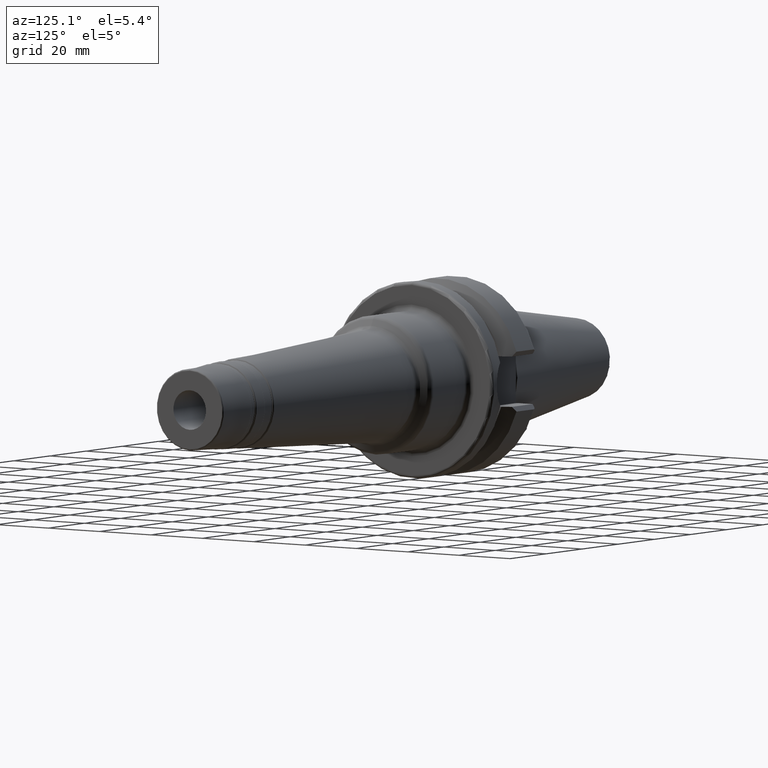
[diagram: clean part render]
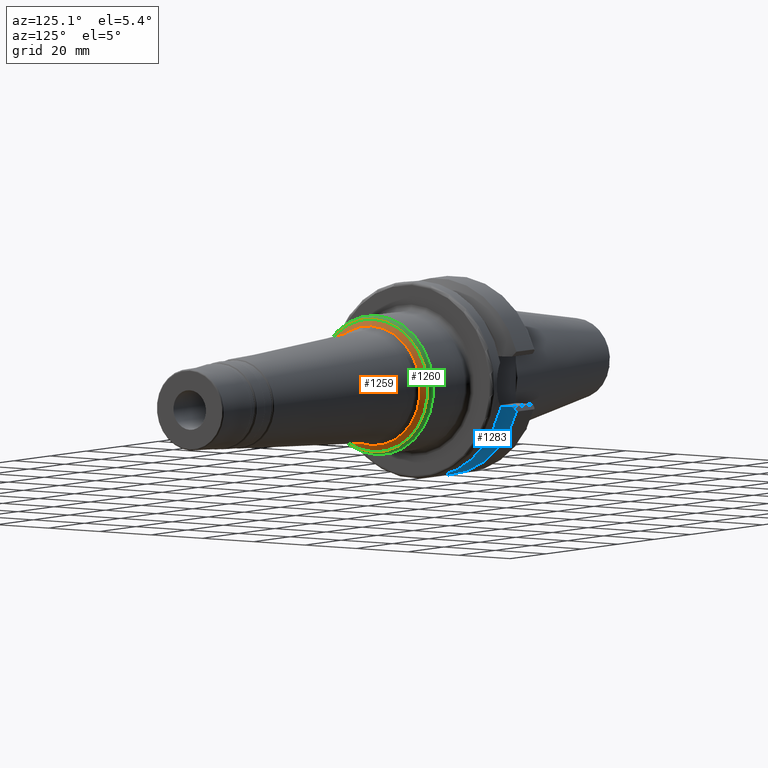
[diagram: same view with three faces highlighted in distinct colors, each labeled with its STEP entity id]
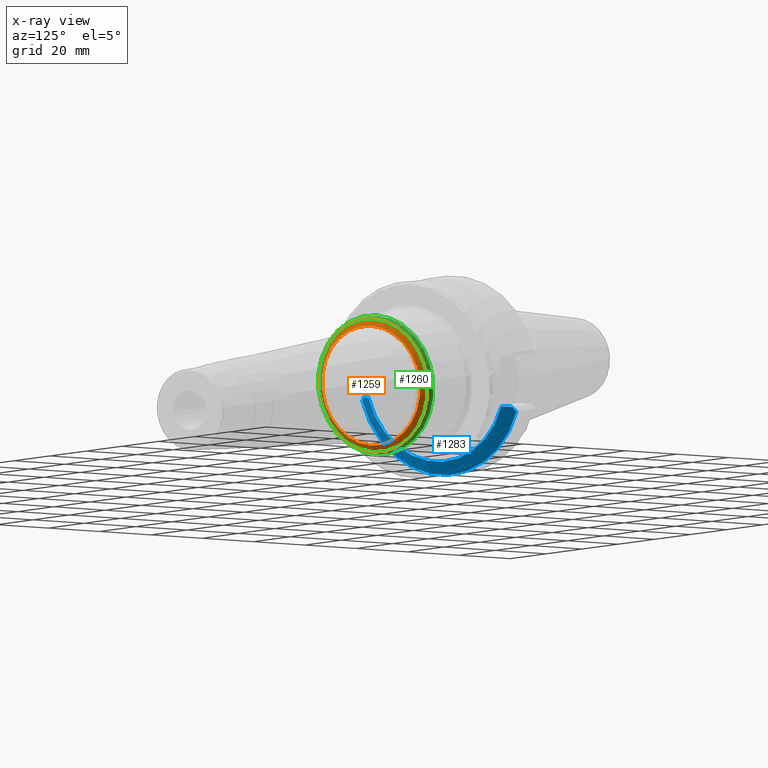
[diagram: x-ray of the same camera — body ghosted, the three highlighted faces saturated]
A machine part, auxiliary view with three faces highlighted in distinct colors.
The next image is the same camera in x-ray (body ghosted, the three faces saturated) — at least one of them is partly hidden behind the body in this view.
Their STEP definitions:

[orange] entity #1259 — the highlighted conical surface has half-angle 60 deg.
#105=LINE('',#2014,#174);
#174=VECTOR('',#1630,20.245388964152);
#243=CONICAL_SURFACE('',#1394,20.245388964152,1.0471975511966);
#275=FACE_OUTER_BOUND('',#357,.T.);
#357=EDGE_LOOP('',(#909,#910,#911,#912));
#452=CIRCLE('',#1392,19.181204786337);
#454=CIRCLE('',#1395,21.25);
#536=VERTEX_POINT('',#2009);
#537=VERTEX_POINT('',#2013);
#674=EDGE_CURVE('',#536,#536,#452,.T.);
#676=EDGE_CURVE('',#536,#537,#105,.T.);
#677=EDGE_CURVE('',#537,#537,#454,.T.);
#909=ORIENTED_EDGE('',*,*,#674,.F.);
#910=ORIENTED_EDGE('',*,*,#676,.T.);
#911=ORIENTED_EDGE('',*,*,#677,.F.);
#912=ORIENTED_EDGE('',*,*,#676,.F.);
#1259=ADVANCED_FACE('',(#275),#243,.T.);
#1392=AXIS2_PLACEMENT_3D('',#2010,#1624,#1625);
#1394=AXIS2_PLACEMENT_3D('',#2012,#1628,#1629);
#1395=AXIS2_PLACEMENT_3D('',#2015,#1631,#1632);
#1624=DIRECTION('center_axis',(1.,0.,0.));
#1625=DIRECTION('ref_axis',(0.,0.,1.));
#1628=DIRECTION('center_axis',(-1.,0.,0.));
#1629=DIRECTION('ref_axis',(0.,0.,-1.));
#1630=DIRECTION('',(-0.499999999999999,-1.06057523872491E-16,0.866025403784439));
#1631=DIRECTION('center_axis',(-1.,0.,0.));
#1632=DIRECTION('ref_axis',(0.,2.32017913300298E-32,1.));
#2009=CARTESIAN_POINT('',(49.4570443003616,-2.34902010453775E-15,19.181204786337));
#2010=CARTESIAN_POINT('Origin',(49.4570443003616,-2.34902010453775E-15,
0.));
#2012=CARTESIAN_POINT('Origin',(48.8426372788327,0.,0.));
#2013=CARTESIAN_POINT('',(48.262624826855,-2.60237444818813E-15,21.25));
#2014=CARTESIAN_POINT('',(48.8426372788327,-2.47934507924419E-15,20.245388964152));
#2015=CARTESIAN_POINT('Origin',(48.262624826855,-2.60237444818813E-15,0.));

[blue] entity #1283 — the highlighted conical surface has half-angle 60.125 deg.
#15=(
BOUNDED_CURVE()
B_SPLINE_CURVE(2,(#2207,#2208,#2209),.UNSPECIFIED.,.F.,.F.)
B_SPLINE_CURVE_WITH_KNOTS((3,3),(0.,0.199960249921199),.UNSPECIFIED.)
CURVE()
GEOMETRIC_REPRESENTATION_ITEM()
RATIONAL_B_SPLINE_CURVE((1.,1.00151196517195,1.00204724221686))
REPRESENTATION_ITEM('')
);
#18=(
BOUNDED_CURVE()
B_SPLINE_CURVE(2,(#2356,#2357,#2358),.UNSPECIFIED.,.F.,.F.)
B_SPLINE_CURVE_WITH_KNOTS((3,3),(0.419137956116462,0.619098206037661),
 .UNSPECIFIED.)
CURVE()
GEOMETRIC_REPRESENTATION_ITEM()
RATIONAL_B_SPLINE_CURVE((1.00204724221686,1.00151196517195,1.))
REPRESENTATION_ITEM('')
);
#19=(
BOUNDED_CURVE()
B_SPLINE_CURVE(2,(#2362,#2363,#2364),.UNSPECIFIED.,.F.,.F.)
B_SPLINE_CURVE_WITH_KNOTS((3,3),(0.173905198239554,0.523582790832813),
 .UNSPECIFIED.)
CURVE()
GEOMETRIC_REPRESENTATION_ITEM()
RATIONAL_B_SPLINE_CURVE((1.00136360040299,1.00205272099915,1.))
REPRESENTATION_ITEM('')
);
#20=(
BOUNDED_CURVE()
B_SPLINE_CURVE(2,(#2367,#2368,#2369),.UNSPECIFIED.,.F.,.F.)
B_SPLINE_CURVE_WITH_KNOTS((3,3),(0.,0.349677592593259),.UNSPECIFIED.)
CURVE()
GEOMETRIC_REPRESENTATION_ITEM()
RATIONAL_B_SPLINE_CURVE((1.,1.00205272099915,1.00136360040299))
REPRESENTATION_ITEM('')
);
#245=CONICAL_SURFACE('',#1443,29.2970358274569,1.04937921276159);
#299=FACE_OUTER_BOUND('',#384,.T.);
#384=EDGE_LOOP('',(#1018,#1019,#1020,#1021,#1022,#1023));
#474=CIRCLE('',#1428,31.5000000000001);
#481=CIRCLE('',#1444,27.0940716549138);
#563=VERTEX_POINT('',#2204);
#564=VERTEX_POINT('',#2206);
#567=VERTEX_POINT('',#2216);
#585=VERTEX_POINT('',#2355);
#586=VERTEX_POINT('',#2361);
#587=VERTEX_POINT('',#2365);
#712=EDGE_CURVE('',#563,#564,#15,.T.);
#717=EDGE_CURVE('',#563,#567,#474,.T.);
#742=EDGE_CURVE('',#585,#567,#18,.T.);
#744=EDGE_CURVE('',#585,#586,#19,.T.);
#745=EDGE_CURVE('',#587,#586,#481,.T.);
#746=EDGE_CURVE('',#587,#564,#20,.T.);
#1018=ORIENTED_EDGE('',*,*,#712,.F.);
#1019=ORIENTED_EDGE('',*,*,#717,.T.);
#1020=ORIENTED_EDGE('',*,*,#742,.F.);
#1021=ORIENTED_EDGE('',*,*,#744,.T.);
#1022=ORIENTED_EDGE('',*,*,#745,.F.);
#1023=ORIENTED_EDGE('',*,*,#746,.T.);
#1283=ADVANCED_FACE('',(#299),#245,.T.);
#1428=AXIS2_PLACEMENT_3D('',#2218,#1706,#1707);
#1443=AXIS2_PLACEMENT_3D('',#2360,#1748,#1749);
#1444=AXIS2_PLACEMENT_3D('',#2366,#1750,#1751);
#1706=DIRECTION('center_axis',(1.,0.,0.));
#1707=DIRECTION('ref_axis',(0.,0.,-1.));
#1748=DIRECTION('center_axis',(-1.,0.,0.));
#1749=DIRECTION('ref_axis',(0.,1.,0.));
#1750=DIRECTION('center_axis',(1.,0.,0.));
#1751=DIRECTION('ref_axis',(0.,0.,-1.));
#2204=CARTESIAN_POINT('',(11.5690363073381,-30.0059801089944,-9.58598757033588));
#2206=CARTESIAN_POINT('',(12.4560255586892,-28.8540227227866,-8.05));
#2207=CARTESIAN_POINT('Ctrl Pts',(11.5690363073381,-30.0059801089944,-9.58598757033589));
#2208=CARTESIAN_POINT('Ctrl Pts',(12.0297591827714,-29.4155299486053,-8.79869793782082));
#2209=CARTESIAN_POINT('Ctrl Pts',(12.4560255586892,-28.8540227227866,-8.05));
#2216=CARTESIAN_POINT('',(11.5690363073381,30.0059801089944,-9.58598757033588));
#2218=CARTESIAN_POINT('Origin',(11.5690363073381,0.,0.));
#2355=CARTESIAN_POINT('',(12.4560255586892,28.8540227227866,-8.05));
#2356=CARTESIAN_POINT('Ctrl Pts',(12.4560255586892,28.8540227227866,-8.05));
#2357=CARTESIAN_POINT('Ctrl Pts',(12.0297591827714,29.4155299486053,-8.79869793782082));
#2358=CARTESIAN_POINT('Ctrl Pts',(11.5690363073381,30.0059801089944,-9.58598757033589));
#2360=CARTESIAN_POINT('Origin',(12.8345181536691,0.,0.));
#2361=CARTESIAN_POINT('',(14.1,25.8705666509569,-8.05));
#2362=CARTESIAN_POINT('Ctrl Pts',(12.4560255586892,28.8540227227866,-8.05));
#2363=CARTESIAN_POINT('Ctrl Pts',(13.3228255918789,27.2874638426469,-8.05));
#2364=CARTESIAN_POINT('Ctrl Pts',(14.1,25.8705666509569,-8.05));
#2365=CARTESIAN_POINT('',(14.1,-25.8705666509569,-8.05));
#2366=CARTESIAN_POINT('Origin',(14.1,0.,0.));
#2367=CARTESIAN_POINT('Ctrl Pts',(14.1,-25.8705666509569,-8.05));
#2368=CARTESIAN_POINT('Ctrl Pts',(13.3228255918789,-27.2874638426469,-8.05));
#2369=CARTESIAN_POINT('Ctrl Pts',(12.4560255586892,-28.8540227227866,-8.05));

[green] entity #1260 — the highlighted toroidal blend (fillet) surface has major radius 20.25 mm and minor (blend) radius 2 mm.
#276=FACE_OUTER_BOUND('',#358,.T.);
#358=EDGE_LOOP('',(#913,#914,#915,#916));
#454=CIRCLE('',#1395,21.25);
#455=CIRCLE('',#1397,2.);
#456=CIRCLE('',#1398,22.25);
#537=VERTEX_POINT('',#2013);
#538=VERTEX_POINT('',#2017);
#677=EDGE_CURVE('',#537,#537,#454,.T.);
#678=EDGE_CURVE('',#537,#538,#455,.T.);
#679=EDGE_CURVE('',#538,#538,#456,.T.);
#913=ORIENTED_EDGE('',*,*,#677,.T.);
#914=ORIENTED_EDGE('',*,*,#678,.T.);
#915=ORIENTED_EDGE('',*,*,#679,.T.);
#916=ORIENTED_EDGE('',*,*,#678,.F.);
#1231=TOROIDAL_SURFACE('',#1396,20.25,2.);
#1260=ADVANCED_FACE('',(#276),#1231,.T.);
#1395=AXIS2_PLACEMENT_3D('',#2015,#1631,#1632);
#1396=AXIS2_PLACEMENT_3D('',#2016,#1633,#1634);
#1397=AXIS2_PLACEMENT_3D('',#2018,#1635,#1636);
#1398=AXIS2_PLACEMENT_3D('',#2019,#1637,#1638);
#1631=DIRECTION('center_axis',(-1.,0.,0.));
#1632=DIRECTION('ref_axis',(0.,2.32017913300298E-32,1.));
#1633=DIRECTION('center_axis',(1.,0.,0.));
#1634=DIRECTION('ref_axis',(0.,0.,-1.));
#1635=DIRECTION('center_axis',(0.,-1.,-1.22464679914735E-16));
#1636=DIRECTION('ref_axis',(0.,-1.22464679914735E-16,1.));
#1637=DIRECTION('center_axis',(1.,0.,0.));
#1638=DIRECTION('ref_axis',(0.,1.22464679914735E-16,1.));
#2013=CARTESIAN_POINT('',(48.262624826855,-2.60237444818813E-15,21.25));
#2015=CARTESIAN_POINT('Origin',(48.262624826855,-2.60237444818813E-15,0.));
#2016=CARTESIAN_POINT('Origin',(46.5305740192861,0.,0.));
#2017=CARTESIAN_POINT('',(46.5305740192861,-2.72483912810286E-15,22.25));
#2018=CARTESIAN_POINT('Origin',(46.5305740192861,-2.47990976827339E-15,
20.25));
#2019=CARTESIAN_POINT('Origin',(46.5305740192861,0.,0.));